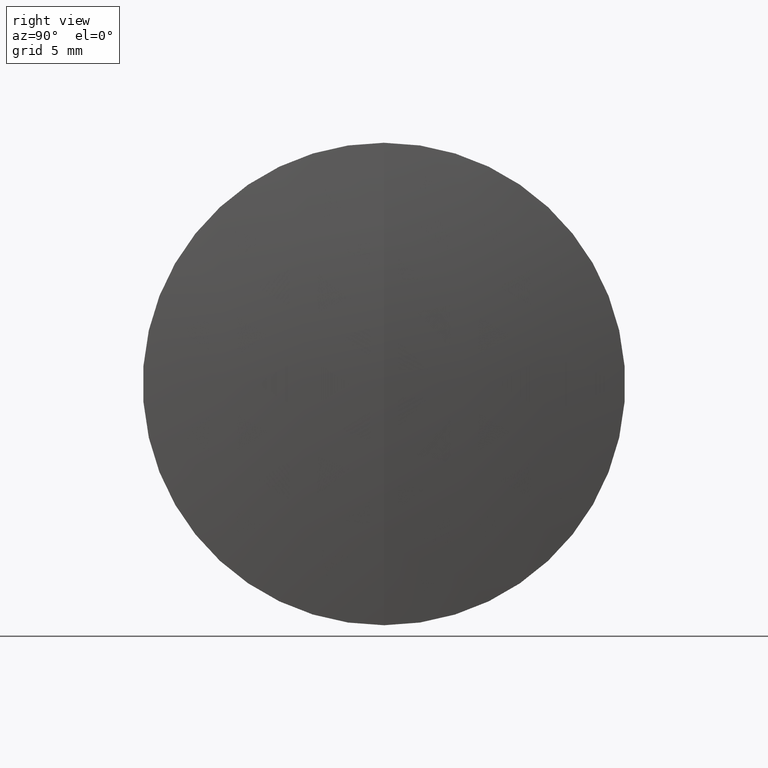
[diagram: clean part render]
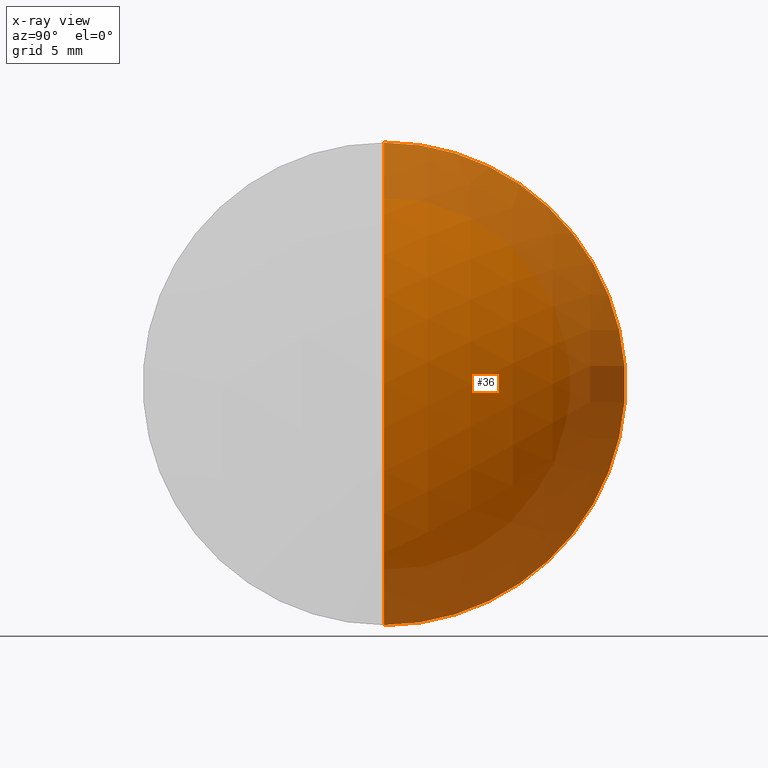
[diagram: x-ray — body ghosted, one internal face saturated and labeled with its STEP entity id]
A machine part, right view, then the same camera in x-ray: the body is ghosted and one INTERNAL B-rep face — a face not visible from any outside direction — is saturated and labeled: STEP entity #36.
In plain terms, the highlighted spherical surface has radius 19.1 mm.
Its self-contained STEP definition (entity closure, byte-faithful):
#6 = AXIS2_PLACEMENT_3D ( 'NONE', #212, #13, #182 ) ;
#13 = DIRECTION ( 'NONE',  ( 0.0000000000000000000, -1.000000000000000000, 0.0000000000000000000 ) ) ;
#20 = DIRECTION ( 'NONE',  ( 0.0000000000000000000, 0.0000000000000000000, 1.000000000000000000 ) ) ;
#27 = CARTESIAN_POINT ( 'NONE',  ( 208.1421632578001800, 0.0000000000000000000, -2.168404344971008900E-016 ) ) ;
#36 = ADVANCED_FACE ( 'NONE', ( #231 ), #206, .T. ) ;
#37 = EDGE_LOOP ( 'NONE', ( #79, #274, #141 ) ) ;
#56 = CARTESIAN_POINT ( 'NONE',  ( 222.4082068579018300, 0.0000000000000000000, 0.0000000000000000000 ) ) ;
#59 = CARTESIAN_POINT ( 'NONE',  ( 222.4082068579018300, 0.0000000000000000000, 12.69999999999999900 ) ) ;
#66 = CIRCLE ( 'NONE', #6, 19.10000000000001600 ) ;
#79 = ORIENTED_EDGE ( 'NONE', *, *, #148, .F. ) ;
#82 = CARTESIAN_POINT ( 'NONE',  ( 222.4082068579018300, 1.555301434917138400E-015, -12.69999999999999900 ) ) ;
#83 = DIRECTION ( 'NONE',  ( 0.0000000000000000000, 1.000000000000000000, 0.0000000000000000000 ) ) ;
#104 = AXIS2_PLACEMENT_3D ( 'NONE', #27, #275, #164 ) ;
#107 = VERTEX_POINT ( 'NONE', #82 ) ;
#109 = AXIS2_PLACEMENT_3D ( 'NONE', #130, #83, #20 ) ;
#130 = CARTESIAN_POINT ( 'NONE',  ( 208.1421632578001800, 0.0000000000000000000, -2.168404344971008900E-016 ) ) ;
#141 = ORIENTED_EDGE ( 'NONE', *, *, #260, .F. ) ;
#147 = CARTESIAN_POINT ( 'NONE',  ( 227.2421632578002000, 0.0000000000000000000, 9.526972586886224600E-016 ) ) ;
#148 = EDGE_CURVE ( 'NONE', #345, #200, #66, .T. ) ;
#164 = DIRECTION ( 'NONE',  ( 0.0000000000000000000, -1.224646799147353200E-016, 1.000000000000000000 ) ) ;
#166 = DIRECTION ( 'NONE',  ( -1.000000000000000000, -0.0000000000000000000, -0.0000000000000000000 ) ) ;
#181 = EDGE_CURVE ( 'NONE', #345, #107, #247, .T. ) ;
#182 = DIRECTION ( 'NONE',  ( 0.0000000000000000000, 0.0000000000000000000, -1.000000000000000000 ) ) ;
#188 = AXIS2_PLACEMENT_3D ( 'NONE', #56, #166, #322 ) ;
#200 = VERTEX_POINT ( 'NONE', #59 ) ;
#206 = SPHERICAL_SURFACE ( 'NONE', #109, 19.10000000000001600 ) ;
#212 = CARTESIAN_POINT ( 'NONE',  ( 208.1421632578001800, 0.0000000000000000000, -2.168404344971008900E-016 ) ) ;
#231 = FACE_OUTER_BOUND ( 'NONE', #37, .T. ) ;
#247 = CIRCLE ( 'NONE', #104, 19.10000000000001600 ) ;
#260 = EDGE_CURVE ( 'NONE', #200, #107, #313, .T. ) ;
#274 = ORIENTED_EDGE ( 'NONE', *, *, #181, .T. ) ;
#275 = DIRECTION ( 'NONE',  ( -0.0000000000000000000, 1.000000000000000000, 1.224646799147353200E-016 ) ) ;
#313 = CIRCLE ( 'NONE', #188, 12.69999999999999900 ) ;
#322 = DIRECTION ( 'NONE',  ( 0.0000000000000000000, 0.0000000000000000000, 1.000000000000000000 ) ) ;
#345 = VERTEX_POINT ( 'NONE', #147 ) ;